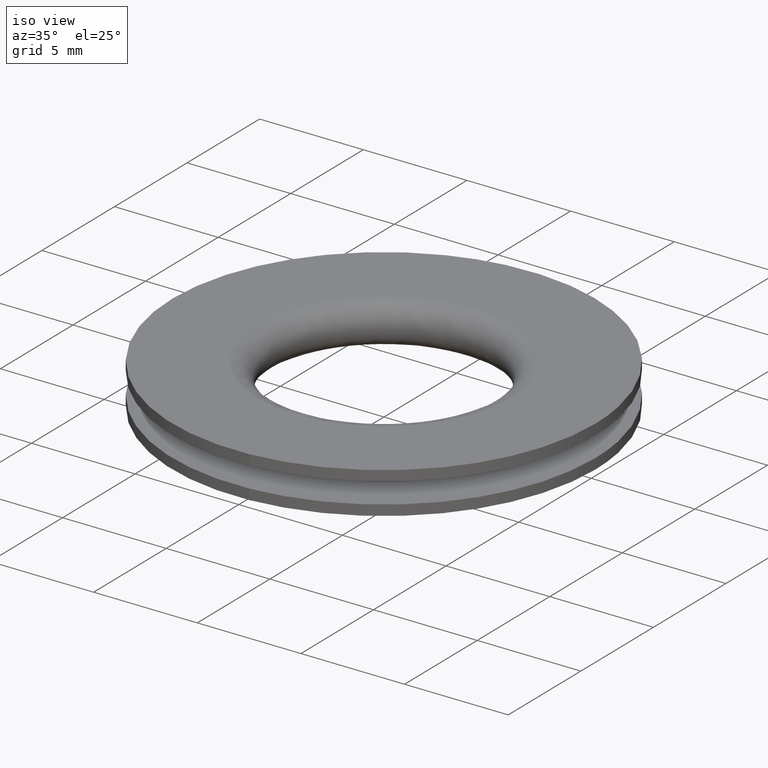
[diagram: clean part render]
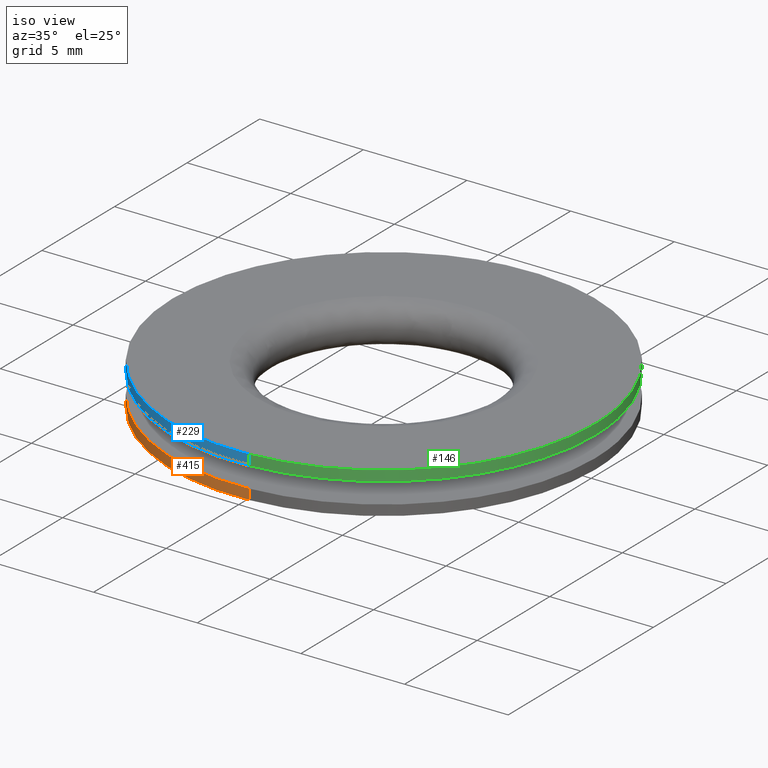
[diagram: same view with three faces highlighted in distinct colors, each labeled with its STEP entity id]
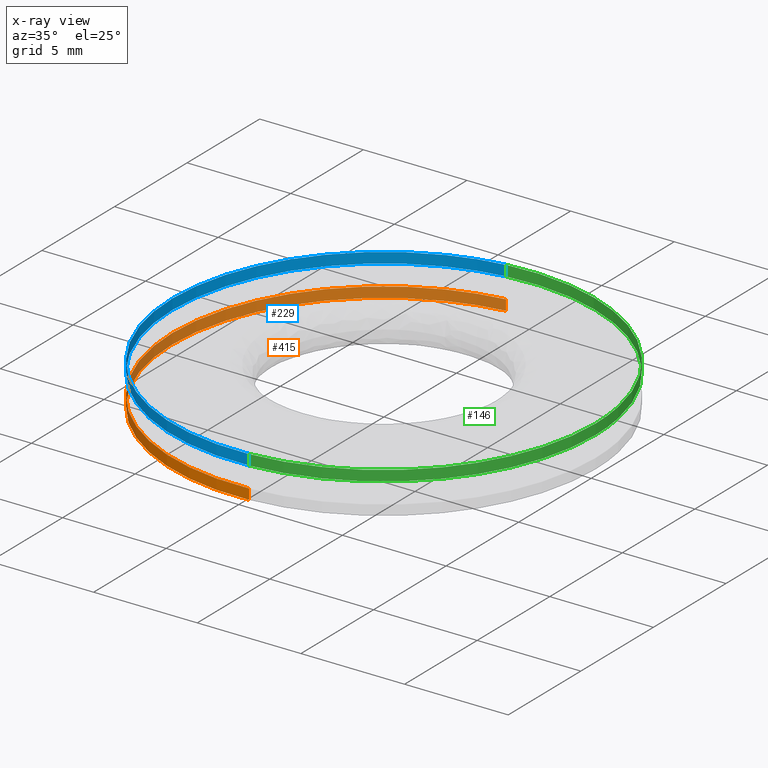
[diagram: x-ray of the same camera — body ghosted, the three highlighted faces saturated]
A machine part, iso view with three faces highlighted in distinct colors.
The next image is the same camera in x-ray (body ghosted, the three faces saturated) — at least one of them is partly hidden behind the body in this view.
Their STEP definitions:

[orange] entity #415 — the highlighted face is a freeform B-spline surface patch.
#252=CARTESIAN_POINT('',(-1.203942627444646,10.128696942340630,0.499999999999797));
#253=VERTEX_POINT('',#252);
#271=CARTESIAN_POINT('',(0.622691400032725,-10.180974168531860,0.499999999999866));
#272=VERTEX_POINT('',#271);
#286=CARTESIAN_POINT('',(0.622691443881657,-10.180974165849969,-2.602085E-017));
#287=VERTEX_POINT('',#286);
#288=CARTESIAN_POINT('',(0.622691400032725,-10.180974168531860,0.499999999999866));
#289=CARTESIAN_POINT('',(0.622691443881657,-10.180974165849969,-2.602085E-017));
#290=QUASI_UNIFORM_CURVE('',1,(#288,#289),.UNSPECIFIED.,.F.,.U.);
#291=EDGE_CURVE('',#272,#287,#290,.T.);
#308=CARTESIAN_POINT('',(-1.203942705108498,10.128696933109209,-2.573232E-017));
#309=VERTEX_POINT('',#308);
#325=CARTESIAN_POINT('',(-1.203942627444646,10.128696942340630,0.499999999999797));
#326=CARTESIAN_POINT('',(-1.203942705108498,10.128696933109209,-2.573232E-017));
#327=QUASI_UNIFORM_CURVE('',1,(#325,#326),.UNSPECIFIED.,.F.,.U.);
#328=EDGE_CURVE('',#253,#309,#327,.T.);
#333=CARTESIAN_POINT('',(0.622695042207002,-10.180973945768240,0.512500000000000));
#334=CARTESIAN_POINT('',(-9.558278903561243,-10.803668987975243,0.512500000000000));
#335=CARTESIAN_POINT('',(-10.180973945768240,-0.622695042207002,0.512500000000000));
#336=CARTESIAN_POINT('',(-10.769018150885582,8.991742725019419,0.512500000000000));
#337=CARTESIAN_POINT('',(-1.203949075464702,10.128696175899870,0.512500000000000));
#338=CARTESIAN_POINT('',(0.622695042207002,-10.180973945768240,-0.012812500000000));
#339=CARTESIAN_POINT('',(-9.558278903561243,-10.803668987975243,-0.012812500000000));
#340=CARTESIAN_POINT('',(-10.180973945768240,-0.622695042207002,-0.012812500000000));
#341=CARTESIAN_POINT('',(-10.769018150885582,8.991742725019419,-0.012812500000000));
#342=CARTESIAN_POINT('',(-1.203949075464702,10.128696175899870,-0.012812500000000));
#350=(BOUNDED_SURFACE()B_SPLINE_SURFACE(2,1,((#333,#338),(#334,#339),(#335,#340),(#336,#341),(#337,#342)),.UNSPECIFIED.,.F.,.F.,.U.)B_SPLINE_SURFACE_WITH_KNOTS((3,2,3),(2,2),(0.0,16.899911687968029,33.123826908417342),(0.0,1.0),.UNSPECIFIED.)GEOMETRIC_REPRESENTATION_ITEM()RATIONAL_B_SPLINE_SURFACE(((1.0,1.0),(0.707106781186548,0.707106781186548),(1.0,1.0),(0.718822509939086,0.718822509939086),(0.977505800795127,0.977505800795127)))REPRESENTATION_ITEM('')SURFACE());
#351=CARTESIAN_POINT('',(-10.199999000000000,0.0,0.500000000000000));
#352=VERTEX_POINT('',#351);
#353=CARTESIAN_POINT('',(-10.199999000000000,0.0,0.500000000000000));
#354=CARTESIAN_POINT('',(-10.199999000000002,9.059385084413679,0.500000000000000));
#355=CARTESIAN_POINT('',(-1.203942627444646,10.128696942340632,0.499999999999797));
#363=(BOUNDED_CURVE()B_SPLINE_CURVE(2,(#353,#354,#355),.UNSPECIFIED.,.F.,.U.)B_SPLINE_CURVE_WITH_KNOTS((3,3),(0.0,0.229562581104653),.UNSPECIFIED.)CURVE()GEOMETRIC_REPRESENTATION_ITEM()RATIONAL_B_SPLINE_CURVE((1.0,0.731050706804535,0.956026965066855))REPRESENTATION_ITEM(''));
#364=EDGE_CURVE('',#352,#253,#363,.T.);
#365=ORIENTED_EDGE('',*,*,#364,.T.);
#366=ORIENTED_EDGE('',*,*,#328,.T.);
#367=CARTESIAN_POINT('',(-10.199999000000000,0.0,0.0));
#368=VERTEX_POINT('',#367);
#369=CARTESIAN_POINT('',(-10.199999000000000,0.0,0.0));
#370=CARTESIAN_POINT('',(-10.199999000000002,9.059385014459993,0.0));
#371=CARTESIAN_POINT('',(-1.203942705108499,10.128696933109207,-2.573232E-017));
#379=(BOUNDED_CURVE()B_SPLINE_CURVE(2,(#369,#370,#371),.UNSPECIFIED.,.F.,.U.)B_SPLINE_CURVE_WITH_KNOTS((3,3),(0.0,0.229562579808786),.UNSPECIFIED.)CURVE()GEOMETRIC_REPRESENTATION_ITEM()RATIONAL_B_SPLINE_CURVE((1.0,0.731050708322738,0.956026962526900))REPRESENTATION_ITEM(''));
#380=EDGE_CURVE('',#368,#309,#379,.T.);
#381=ORIENTED_EDGE('',*,*,#380,.F.);
#382=CARTESIAN_POINT('',(0.622691443881657,-10.180974165849973,-2.602085E-017));
#383=CARTESIAN_POINT('',(0.311636350885541,-10.199999000000000,0.0));
#384=CARTESIAN_POINT('',(0.0,-10.199999000000000,0.0));
#385=CARTESIAN_POINT('',(-10.199999000000002,-10.199999000000002,0.0));
#386=CARTESIAN_POINT('',(-10.199999000000000,0.0,0.0));
#394=(BOUNDED_CURVE()B_SPLINE_CURVE(2,(#382,#383,#384,#385,#386),.UNSPECIFIED.,.F.,.U.)B_SPLINE_CURVE_WITH_KNOTS((3,2,3),(0.739333023226263,0.750000000000000,1.0),.UNSPECIFIED.)CURVE()GEOMETRIC_REPRESENTATION_ITEM()RATIONAL_B_SPLINE_CURVE((0.976072172374189,0.987502859350927,1.0,0.707106781186548,1.0))REPRESENTATION_ITEM(''));
#395=EDGE_CURVE('',#287,#368,#394,.T.);
#396=ORIENTED_EDGE('',*,*,#395,.F.);
#397=ORIENTED_EDGE('',*,*,#291,.F.);
#398=CARTESIAN_POINT('',(0.622691400032725,-10.180974168531858,0.499999999999866));
#399=CARTESIAN_POINT('',(0.311636328899603,-10.199999000000004,0.500000000000000));
#400=CARTESIAN_POINT('',(0.0,-10.199999000000000,0.500000000000000));
#401=CARTESIAN_POINT('',(-10.199999000000002,-10.199999000000002,0.500000000000000));
#402=CARTESIAN_POINT('',(-10.199999000000000,0.0,0.500000000000000));
#410=(BOUNDED_CURVE()B_SPLINE_CURVE(2,(#398,#399,#400,#401,#402),.UNSPECIFIED.,.F.,.U.)B_SPLINE_CURVE_WITH_KNOTS((3,2,3),(0.739333023969413,0.750000000000000,1.0),.UNSPECIFIED.)CURVE()GEOMETRIC_REPRESENTATION_ITEM()RATIONAL_B_SPLINE_CURVE((0.976072173966902,0.987502860221582,1.0,0.707106781186548,1.0))REPRESENTATION_ITEM(''));
#411=EDGE_CURVE('',#272,#352,#410,.T.);
#412=ORIENTED_EDGE('',*,*,#411,.T.);
#413=EDGE_LOOP('',(#365,#366,#381,#396,#397,#412));
#414=FACE_OUTER_BOUND('',#413,.T.);
#415=ADVANCED_FACE('',(#414),#350,.T.);

[blue] entity #229 — the highlighted face is a freeform B-spline surface patch.
#66=CARTESIAN_POINT('',(-1.203942625551559,10.128696942565650,1.500000000000203));
#67=VERTEX_POINT('',#66);
#85=CARTESIAN_POINT('',(-1.203942705108498,10.128696933109209,2.0));
#86=VERTEX_POINT('',#85);
#87=CARTESIAN_POINT('',(-1.203942705108498,10.128696933109209,2.0));
#88=CARTESIAN_POINT('',(-1.203942625551559,10.128696942565650,1.500000000000203));
#89=QUASI_UNIFORM_CURVE('',1,(#87,#88),.UNSPECIFIED.,.F.,.U.);
#90=EDGE_CURVE('',#86,#67,#89,.T.);
#109=CARTESIAN_POINT('',(0.622691443881657,-10.180974165849969,2.0));
#110=VERTEX_POINT('',#109);
#124=CARTESIAN_POINT('',(0.622691398963892,-10.180974168597229,1.500000000000134));
#125=VERTEX_POINT('',#124);
#126=CARTESIAN_POINT('',(0.622691443881657,-10.180974165849969,2.0));
#127=CARTESIAN_POINT('',(0.622691398963892,-10.180974168597229,1.500000000000134));
#128=QUASI_UNIFORM_CURVE('',1,(#126,#127),.UNSPECIFIED.,.F.,.U.);
#129=EDGE_CURVE('',#110,#125,#128,.T.);
#147=CARTESIAN_POINT('',(0.622695042207002,-10.180973945768240,2.012500000000000));
#148=CARTESIAN_POINT('',(-9.558278903561243,-10.803668987975243,2.012500000000000));
#149=CARTESIAN_POINT('',(-10.180973945768240,-0.622695042207002,2.012500000000000));
#150=CARTESIAN_POINT('',(-10.769018150885582,8.991742725019419,2.012500000000000));
#151=CARTESIAN_POINT('',(-1.203949075464702,10.128696175899870,2.012500000000001));
#152=CARTESIAN_POINT('',(0.622695042207002,-10.180973945768240,1.487187500000000));
#153=CARTESIAN_POINT('',(-9.558278903561243,-10.803668987975243,1.487187499999999));
#154=CARTESIAN_POINT('',(-10.180973945768240,-0.622695042207002,1.487187500000000));
#155=CARTESIAN_POINT('',(-10.769018150885582,8.991742725019419,1.487187500000000));
#156=CARTESIAN_POINT('',(-1.203949075464702,10.128696175899870,1.487187500000000));
#164=(BOUNDED_SURFACE()B_SPLINE_SURFACE(2,1,((#147,#152),(#148,#153),(#149,#154),(#150,#155),(#151,#156)),.UNSPECIFIED.,.F.,.F.,.U.)B_SPLINE_SURFACE_WITH_KNOTS((3,2,3),(2,2),(0.0,16.899911687968029,33.123826908417342),(0.0,1.0),.UNSPECIFIED.)GEOMETRIC_REPRESENTATION_ITEM()RATIONAL_B_SPLINE_SURFACE(((1.0,1.0),(0.707106781186548,0.707106781186548),(1.0,1.0),(0.718822509939086,0.718822509939086),(0.977505800795127,0.977505800795127)))REPRESENTATION_ITEM('')SURFACE());
#165=CARTESIAN_POINT('',(-10.199999000000000,0.0,1.500000000000000));
#166=VERTEX_POINT('',#165);
#167=CARTESIAN_POINT('',(-10.199999000000000,0.0,1.500000000000000));
#168=CARTESIAN_POINT('',(-10.199999000000000,9.059385086118825,1.500000000000000));
#169=CARTESIAN_POINT('',(-1.203942625551559,10.128696942565654,1.500000000000203));
#177=(BOUNDED_CURVE()B_SPLINE_CURVE(2,(#167,#168,#169),.UNSPECIFIED.,.F.,.U.)B_SPLINE_CURVE_WITH_KNOTS((3,3),(0.0,0.229562581136241),.UNSPECIFIED.)CURVE()GEOMETRIC_REPRESENTATION_ITEM()RATIONAL_B_SPLINE_CURVE((1.0,0.731050706767529,0.956026965128767))REPRESENTATION_ITEM(''));
#178=EDGE_CURVE('',#166,#67,#177,.T.);
#179=ORIENTED_EDGE('',*,*,#178,.F.);
#180=CARTESIAN_POINT('',(0.622691398963892,-10.180974168597228,1.500000000000133));
#181=CARTESIAN_POINT('',(0.311636328363689,-10.199999000000005,1.500000000000000));
#182=CARTESIAN_POINT('',(0.0,-10.199999000000000,1.500000000000000));
#183=CARTESIAN_POINT('',(-10.199999000000002,-10.199999000000002,1.500000000000000));
#184=CARTESIAN_POINT('',(-10.199999000000000,0.0,1.500000000000000));
#192=(BOUNDED_CURVE()B_SPLINE_CURVE(2,(#180,#181,#182,#183,#184),.UNSPECIFIED.,.F.,.U.)B_SPLINE_CURVE_WITH_KNOTS((3,2,3),(0.739333023987528,0.750000000000000,1.0),.UNSPECIFIED.)CURVE()GEOMETRIC_REPRESENTATION_ITEM()RATIONAL_B_SPLINE_CURVE((0.976072174005725,0.987502860242804,1.0,0.707106781186548,1.0))REPRESENTATION_ITEM(''));
#193=EDGE_CURVE('',#125,#166,#192,.T.);
#194=ORIENTED_EDGE('',*,*,#193,.F.);
#195=ORIENTED_EDGE('',*,*,#129,.F.);
#196=CARTESIAN_POINT('',(-10.199999000000000,0.0,2.0));
#197=VERTEX_POINT('',#196);
#198=CARTESIAN_POINT('',(0.622691443881657,-10.180974165849973,2.0));
#199=CARTESIAN_POINT('',(0.311636350885541,-10.199999000000000,2.000000000000000));
#200=CARTESIAN_POINT('',(0.0,-10.199999000000000,2.0));
#201=CARTESIAN_POINT('',(-10.199999000000002,-10.199999000000002,2.000000000000000));
#202=CARTESIAN_POINT('',(-10.199999000000000,0.0,2.0));
#210=(BOUNDED_CURVE()B_SPLINE_CURVE(2,(#198,#199,#200,#201,#202),.UNSPECIFIED.,.F.,.U.)B_SPLINE_CURVE_WITH_KNOTS((3,2,3),(0.739333023226263,0.750000000000000,1.0),.UNSPECIFIED.)CURVE()GEOMETRIC_REPRESENTATION_ITEM()RATIONAL_B_SPLINE_CURVE((0.976072172374189,0.987502859350927,1.0,0.707106781186548,1.0))REPRESENTATION_ITEM(''));
#211=EDGE_CURVE('',#110,#197,#210,.T.);
#212=ORIENTED_EDGE('',*,*,#211,.T.);
#213=CARTESIAN_POINT('',(-10.199999000000000,0.0,2.0));
#214=CARTESIAN_POINT('',(-10.199999000000002,9.059385014459993,1.999999999999999));
#215=CARTESIAN_POINT('',(-1.203942705108499,10.128696933109207,2.000000000000000));
#223=(BOUNDED_CURVE()B_SPLINE_CURVE(2,(#213,#214,#215),.UNSPECIFIED.,.F.,.U.)B_SPLINE_CURVE_WITH_KNOTS((3,3),(0.0,0.229562579808786),.UNSPECIFIED.)CURVE()GEOMETRIC_REPRESENTATION_ITEM()RATIONAL_B_SPLINE_CURVE((1.0,0.731050708322738,0.956026962526900))REPRESENTATION_ITEM(''));
#224=EDGE_CURVE('',#197,#86,#223,.T.);
#225=ORIENTED_EDGE('',*,*,#224,.T.);
#226=ORIENTED_EDGE('',*,*,#90,.T.);
#227=EDGE_LOOP('',(#179,#194,#195,#212,#225,#226));
#228=FACE_OUTER_BOUND('',#227,.T.);
#229=ADVANCED_FACE('',(#228),#164,.T.);

[green] entity #146 — the highlighted face is a freeform B-spline surface patch.
#44=CARTESIAN_POINT('',(-1.203949075464702,10.128696175899870,2.012500000000001));
#45=CARTESIAN_POINT('',(-0.914070142492644,10.163152681188162,2.012500000000000));
#46=CARTESIAN_POINT('',(-0.622695042207002,10.180973945768240,2.012500000000000));
#47=CARTESIAN_POINT('',(9.558278903561243,10.803668987975243,2.012500000000000));
#48=CARTESIAN_POINT('',(10.180973945768240,0.622695042207002,2.012500000000000));
#49=CARTESIAN_POINT('',(10.803668987975243,-9.558278903561243,2.012500000000000));
#50=CARTESIAN_POINT('',(0.622695042207002,-10.180973945768240,2.012500000000000));
#51=CARTESIAN_POINT('',(-1.203949075464702,10.128696175899870,1.487187500000000));
#52=CARTESIAN_POINT('',(-0.914070142492644,10.163152681188162,1.487187499999999));
#53=CARTESIAN_POINT('',(-0.622695042207002,10.180973945768240,1.487187500000000));
#54=CARTESIAN_POINT('',(9.558278903561243,10.803668987975243,1.487187499999999));
#55=CARTESIAN_POINT('',(10.180973945768240,0.622695042207002,1.487187500000000));
#56=CARTESIAN_POINT('',(10.803668987975243,-9.558278903561243,1.487187499999999));
#57=CARTESIAN_POINT('',(0.622695042207002,-10.180973945768240,1.487187500000000));
#65=(BOUNDED_SURFACE()B_SPLINE_SURFACE(2,1,((#44,#51),(#45,#52),(#46,#53),(#47,#54),(#48,#55),(#49,#56),(#50,#57)),.UNSPECIFIED.,.F.,.F.,.U.)B_SPLINE_SURFACE_WITH_KNOTS((3,2,2,3),(2,2),(0.0,0.675996467518722,17.575908155486751,34.475819843454779),(0.0,1.0),.UNSPECIFIED.)GEOMETRIC_REPRESENTATION_ITEM()RATIONAL_B_SPLINE_SURFACE(((0.977505800795127,0.977505800795127),(0.988284271247462,0.988284271247462),(1.0,1.0),(0.707106781186548,0.707106781186548),(1.0,1.0),(0.707106781186548,0.707106781186548),(1.0,1.0)))REPRESENTATION_ITEM('')SURFACE());
#66=CARTESIAN_POINT('',(-1.203942625551559,10.128696942565650,1.500000000000203));
#67=VERTEX_POINT('',#66);
#68=CARTESIAN_POINT('',(10.199999000000000,0.0,1.500000000000000));
#69=VERTEX_POINT('',#68);
#70=CARTESIAN_POINT('',(-1.203942625551559,10.128696942565654,1.500000000000203));
#71=CARTESIAN_POINT('',(-0.604082702175272,10.199998999999998,1.500000000000000));
#72=CARTESIAN_POINT('',(0.0,10.199999000000000,1.500000000000000));
#73=CARTESIAN_POINT('',(10.199999000000002,10.199999000000002,1.500000000000000));
#74=CARTESIAN_POINT('',(10.199999000000000,0.0,1.500000000000000));
#82=(BOUNDED_CURVE()B_SPLINE_CURVE(2,(#70,#71,#72,#73,#74),.UNSPECIFIED.,.F.,.U.)B_SPLINE_CURVE_WITH_KNOTS((3,2,3),(0.229562581136241,0.250000000000000,0.500000000000000),.UNSPECIFIED.)CURVE()GEOMETRIC_REPRESENTATION_ITEM()RATIONAL_B_SPLINE_CURVE((0.956026965128767,0.976056074419019,1.0,0.707106781186548,1.0))REPRESENTATION_ITEM(''));
#83=EDGE_CURVE('',#67,#69,#82,.T.);
#84=ORIENTED_EDGE('',*,*,#83,.F.);
#85=CARTESIAN_POINT('',(-1.203942705108498,10.128696933109209,2.0));
#86=VERTEX_POINT('',#85);
#87=CARTESIAN_POINT('',(-1.203942705108498,10.128696933109209,2.0));
#88=CARTESIAN_POINT('',(-1.203942625551559,10.128696942565650,1.500000000000203));
#89=QUASI_UNIFORM_CURVE('',1,(#87,#88),.UNSPECIFIED.,.F.,.U.);
#90=EDGE_CURVE('',#86,#67,#89,.T.);
#91=ORIENTED_EDGE('',*,*,#90,.F.);
#92=CARTESIAN_POINT('',(10.199999000000000,0.0,2.0));
#93=VERTEX_POINT('',#92);
#94=CARTESIAN_POINT('',(-1.203942705108499,10.128696933109207,2.000000000000000));
#95=CARTESIAN_POINT('',(-0.604082742374266,10.199999000000000,2.000000000000000));
#96=CARTESIAN_POINT('',(0.0,10.199999000000000,2.0));
#97=CARTESIAN_POINT('',(10.199999000000002,10.199999000000002,2.000000000000000));
#98=CARTESIAN_POINT('',(10.199999000000000,0.0,2.0));
#106=(BOUNDED_CURVE()B_SPLINE_CURVE(2,(#94,#95,#96,#97,#98),.UNSPECIFIED.,.F.,.U.)B_SPLINE_CURVE_WITH_KNOTS((3,2,3),(0.229562579808786,0.250000000000000,0.500000000000000),.UNSPECIFIED.)CURVE()GEOMETRIC_REPRESENTATION_ITEM()RATIONAL_B_SPLINE_CURVE((0.956026962526900,0.976056072863809,1.0,0.707106781186548,1.0))REPRESENTATION_ITEM(''));
#107=EDGE_CURVE('',#86,#93,#106,.T.);
#108=ORIENTED_EDGE('',*,*,#107,.T.);
#109=CARTESIAN_POINT('',(0.622691443881657,-10.180974165849969,2.0));
#110=VERTEX_POINT('',#109);
#111=CARTESIAN_POINT('',(10.199999000000000,0.0,2.0));
#112=CARTESIAN_POINT('',(10.199999000000002,-9.595204339361704,2.000000000000000));
#113=CARTESIAN_POINT('',(0.622691443881657,-10.180974165849973,2.0));
#121=(BOUNDED_CURVE()B_SPLINE_CURVE(2,(#111,#112,#113),.UNSPECIFIED.,.F.,.U.)B_SPLINE_CURVE_WITH_KNOTS((3,3),(0.500000000000000,0.739333023226263),.UNSPECIFIED.)CURVE()GEOMETRIC_REPRESENTATION_ITEM()RATIONAL_B_SPLINE_CURVE((1.0,0.719603921835620,0.976072172374189))REPRESENTATION_ITEM(''));
#122=EDGE_CURVE('',#93,#110,#121,.T.);
#123=ORIENTED_EDGE('',*,*,#122,.T.);
#124=CARTESIAN_POINT('',(0.622691398963892,-10.180974168597229,1.500000000000134));
#125=VERTEX_POINT('',#124);
#126=CARTESIAN_POINT('',(0.622691443881657,-10.180974165849969,2.0));
#127=CARTESIAN_POINT('',(0.622691398963892,-10.180974168597229,1.500000000000134));
#128=QUASI_UNIFORM_CURVE('',1,(#126,#127),.UNSPECIFIED.,.F.,.U.);
#129=EDGE_CURVE('',#110,#125,#128,.T.);
#130=ORIENTED_EDGE('',*,*,#129,.T.);
#131=CARTESIAN_POINT('',(10.199999000000000,0.0,1.500000000000000));
#132=CARTESIAN_POINT('',(10.199999000000002,-9.595204381774195,1.500000000000000));
#133=CARTESIAN_POINT('',(0.622691398963892,-10.180974168597228,1.500000000000133));
#141=(BOUNDED_CURVE()B_SPLINE_CURVE(2,(#131,#132,#133),.UNSPECIFIED.,.F.,.U.)B_SPLINE_CURVE_WITH_KNOTS((3,3),(0.500000000000000,0.739333023987528),.UNSPECIFIED.)CURVE()GEOMETRIC_REPRESENTATION_ITEM()RATIONAL_B_SPLINE_CURVE((1.0,0.719603920943743,0.976072174005725))REPRESENTATION_ITEM(''));
#142=EDGE_CURVE('',#69,#125,#141,.T.);
#143=ORIENTED_EDGE('',*,*,#142,.F.);
#144=EDGE_LOOP('',(#84,#91,#108,#123,#130,#143));
#145=FACE_OUTER_BOUND('',#144,.T.);
#146=ADVANCED_FACE('',(#145),#65,.T.);